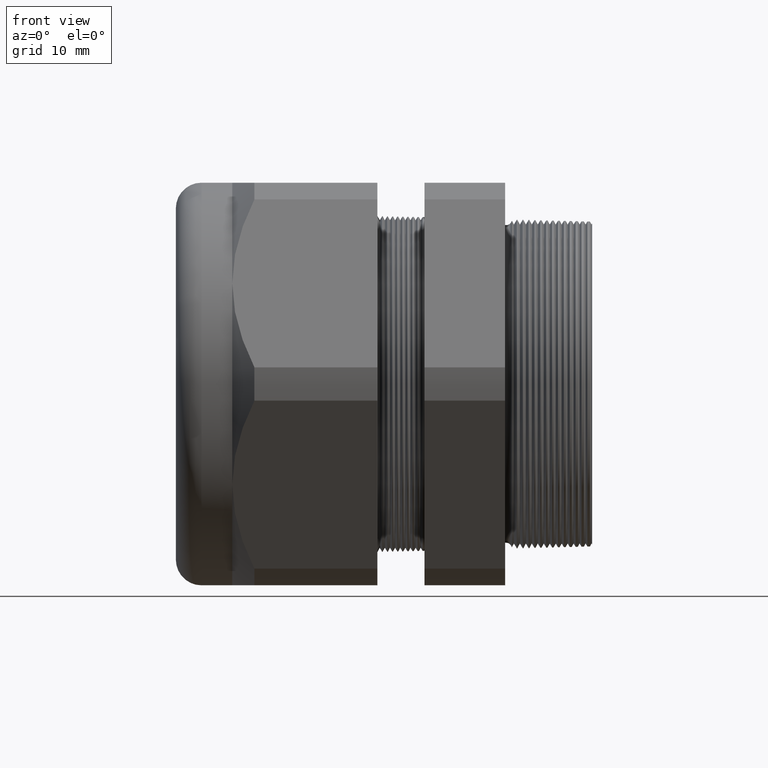
[diagram: clean part render]
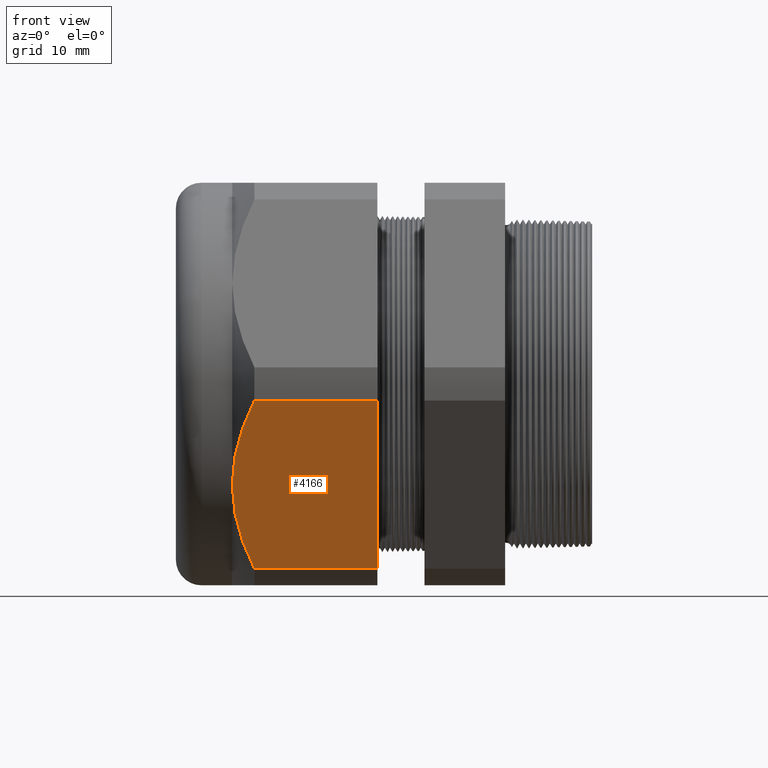
[diagram: same view with one face highlighted and labeled with its STEP entity id]
A machine part, front view. The second image highlights one B-rep face of the part: STEP entity #4166.
In plain terms, the highlighted planar face has unit normal (0, -0.866, -0.5).
Its self-contained STEP definition (entity closure, byte-faithful):
#1534 = CARTESIAN_POINT ( 'NONE',  ( -1.058802799999999400, -0.7376671049631138300, -1.082323095131642500 ) ) ;
#1544 = CARTESIAN_POINT ( 'NONE',  ( -1.058802799999999400, -1.306152847968161000, -0.09767690486835779700 ) ) ;
#1546 = DIRECTION ( 'NONE',  ( -1.000000000000000000, 0.0000000000000000000, 0.0000000000000000000 ) ) ;
#1547 = VECTOR ( 'NONE', #1546, 39.37007874015748100 ) ;
#1548 = CARTESIAN_POINT ( 'NONE',  ( 0.2000000000000000400, -1.306152847968161000, -0.09767690486835779700 ) ) ;
#1549 = LINE ( 'NONE', #1548, #1547 ) ;
#1550 = CARTESIAN_POINT ( 'NONE',  ( -1.779492000000000100, -1.306152847968161000, -0.09767690486835775600 ) ) ;
#1565 = CARTESIAN_POINT ( 'NONE',  ( -1.779492000000000100, -0.7376671049631138300, -1.082323095131642500 ) ) ;
#1566 = CARTESIAN_POINT ( 'NONE',  ( -1.799142024126190400, -0.7603040856765034300, -1.043114694406094700 ) ) ;
#1567 = CARTESIAN_POINT ( 'NONE',  ( -1.817185162014755200, -0.7832802371540393800, -1.003318832684603900 ) ) ;
#1568 = CARTESIAN_POINT ( 'NONE',  ( -1.849171828712719200, -0.8299341694478903400, -0.9225118515787755800 ) ) ;
#1569 = CARTESIAN_POINT ( 'NONE',  ( -1.862989026242972500, -0.8534331075844797700, -0.8818104968022841800 ) ) ;
#1570 = CARTESIAN_POINT ( 'NONE',  ( -1.896875206165112800, -0.9245277886614218200, -0.7586708970291152800 ) ) ;
#1571 = CARTESIAN_POINT ( 'NONE',  ( -1.909291999999998700, -0.9727282558474343900, -0.6751852389143852000 ) ) ;
#1572 = CARTESIAN_POINT ( 'NONE',  ( -1.909291999999999500, -1.021909976465637600, -0.5899999999999998600 ) ) ;
#1574 = CARTESIAN_POINT ( 'NONE',  ( -1.779492000000000100, -0.7376671049631138300, -1.082323095131642500 ) ) ;
#1575 = B_SPLINE_CURVE_WITH_KNOTS ( 'NONE', 3,
 ( #1572, #1571, #1570, #1569, #1568, #1567, #1566, #1565 ),
 .UNSPECIFIED., .F., .F.,
 ( 4, 2, 2, 4 ),
 ( 0.01482019157634350100, 0.02222508228781094900, 0.02592752764354467800, 0.02962997299927840700 ),
 .UNSPECIFIED. ) ;
#1576 = CARTESIAN_POINT ( 'NONE',  ( -1.909291999999999500, -1.021909976465637600, -0.5899999999999998600 ) ) ;
#1588 = DIRECTION ( 'NONE',  ( -1.000000000000000000, 0.0000000000000000000, 0.0000000000000000000 ) ) ;
#1589 = VECTOR ( 'NONE', #1588, 39.37007874015748100 ) ;
#1590 = CARTESIAN_POINT ( 'NONE',  ( 0.2000000000000000400, -0.7376671049631138300, -1.082323095131642500 ) ) ;
#1591 = LINE ( 'NONE', #1590, #1589 ) ;
#1598 = DIRECTION ( 'NONE',  ( 0.0000000000000000000, 0.5000000000000000000, -0.8660254037844386000 ) ) ;
#1599 = DIRECTION ( 'NONE',  ( 0.0000000000000000000, -0.8660254037844387100, -0.5000000000000001100 ) ) ;
#1600 = CARTESIAN_POINT ( 'NONE',  ( 0.2000000000000000400, -0.7376671049631138300, -1.082323095131642500 ) ) ;
#1601 = AXIS2_PLACEMENT_3D ( 'NONE', #1600, #1599, #1598 ) ;
#1602 = PLANE ( 'NONE',  #1601 ) ;
#1603 = FACE_OUTER_BOUND ( 'NONE', #4156, .T. ) ;
#1613 = CARTESIAN_POINT ( 'NONE',  ( -1.909291999999999500, -1.021909976465637600, -0.5899999999999998600 ) ) ;
#1614 = CARTESIAN_POINT ( 'NONE',  ( -1.909291999999999500, -1.034213843210325400, -0.5686890776686432900 ) ) ;
#1615 = CARTESIAN_POINT ( 'NONE',  ( -1.908513362268124700, -1.046630246888398600, -0.5471832356509359600 ) ) ;
#1616 = CARTESIAN_POINT ( 'NONE',  ( -1.905420772962690200, -1.071299393251977900, -0.5044550207698633700 ) ) ;
#1617 = CARTESIAN_POINT ( 'NONE',  ( -1.903116933607496200, -1.083539571180133400, -0.4832544107046148900 ) ) ;
#1618 = CARTESIAN_POINT ( 'NONE',  ( -1.894069948313096500, -1.119994011135374300, -0.4201134685406686100 ) ) ;
#1619 = CARTESIAN_POINT ( 'NONE',  ( -1.885190669446346500, -1.143942096382617700, -0.3786341681484526300 ) ) ;
#1620 = CARTESIAN_POINT ( 'NONE',  ( -1.851187505985919500, -1.214868581998317400, -0.2557858914597568300 ) ) ;
#1621 = CARTESIAN_POINT ( 'NONE',  ( -1.818743475994756300, -1.260934842160162700, -0.1759967883447545500 ) ) ;
#1623 = CARTESIAN_POINT ( 'NONE',  ( -1.779492000000000100, -1.306152847968161000, -0.09767690486835775600 ) ) ;
#1627 = B_SPLINE_CURVE_WITH_KNOTS ( 'NONE', 3,
 ( #1623, #1621, #1620, #1619, #1618, #1617, #1616, #1615, #1614, #1613 ),
 .UNSPECIFIED., .F., .F.,
 ( 4, 2, 2, 2, 4 ),
 ( 2.483246384210776900E-007, 0.007410219950490960300, 0.01111520576341723200, 0.01296769866988036600, 0.01482019157634350100 ),
 .UNSPECIFIED. ) ;
#1628 = DIRECTION ( 'NONE',  ( 0.0000000000000000000, 0.5000000000000000000, -0.8660254037844386000 ) ) ;
#1629 = VECTOR ( 'NONE', #1628, 39.37007874015748900 ) ;
#1630 = CARTESIAN_POINT ( 'NONE',  ( -1.058802799999999400, -0.7756599764656372200, -1.016517511363836100 ) ) ;
#1631 = LINE ( 'NONE', #1630, #1629 ) ;
#4133 = VERTEX_POINT ( 'NONE', #1550 ) ;
#4134 = EDGE_CURVE ( 'NONE', #4138, #4133, #1549, .T. ) ;
#4138 = VERTEX_POINT ( 'NONE', #1544 ) ;
#4144 = ORIENTED_EDGE ( 'NONE', *, *, #4149, .F. ) ;
#4145 = VERTEX_POINT ( 'NONE', #1534 ) ;
#4149 = EDGE_CURVE ( 'NONE', #4145, #4155, #1591, .T. ) ;
#4154 = EDGE_CURVE ( 'NONE', #4159, #4155, #1575, .T. ) ;
#4155 = VERTEX_POINT ( 'NONE', #1574 ) ;
#4156 = EDGE_LOOP ( 'NONE', ( #4158, #4157, #4162, #4144, #4180 ) ) ;
#4157 = ORIENTED_EDGE ( 'NONE', *, *, #4160, .T. ) ;
#4158 = ORIENTED_EDGE ( 'NONE', *, *, #4134, .T. ) ;
#4159 = VERTEX_POINT ( 'NONE', #1576 ) ;
#4160 = EDGE_CURVE ( 'NONE', #4133, #4159, #1627, .T. ) ;
#4162 = ORIENTED_EDGE ( 'NONE', *, *, #4154, .T. ) ;
#4166 = ADVANCED_FACE ( 'NONE', ( #1603 ), #1602, .T. ) ;
#4180 = ORIENTED_EDGE ( 'NONE', *, *, #4186, .F. ) ;
#4186 = EDGE_CURVE ( 'NONE', #4138, #4145, #1631, .T. ) ;